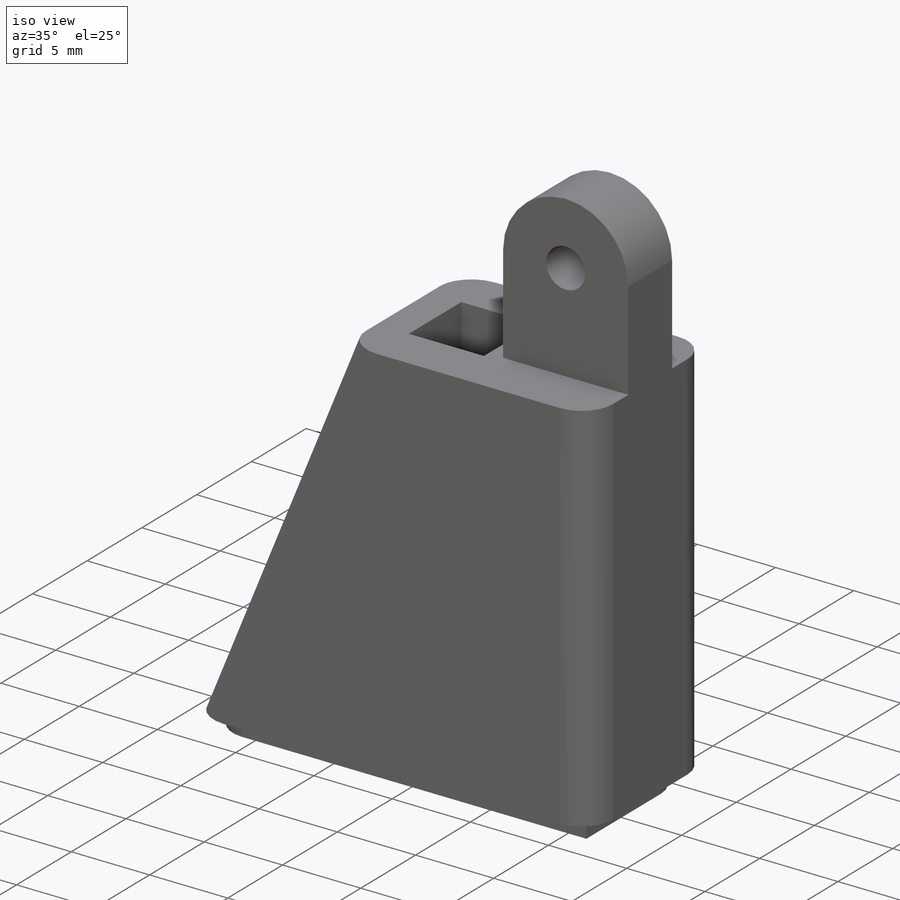
[diagram: iso view]
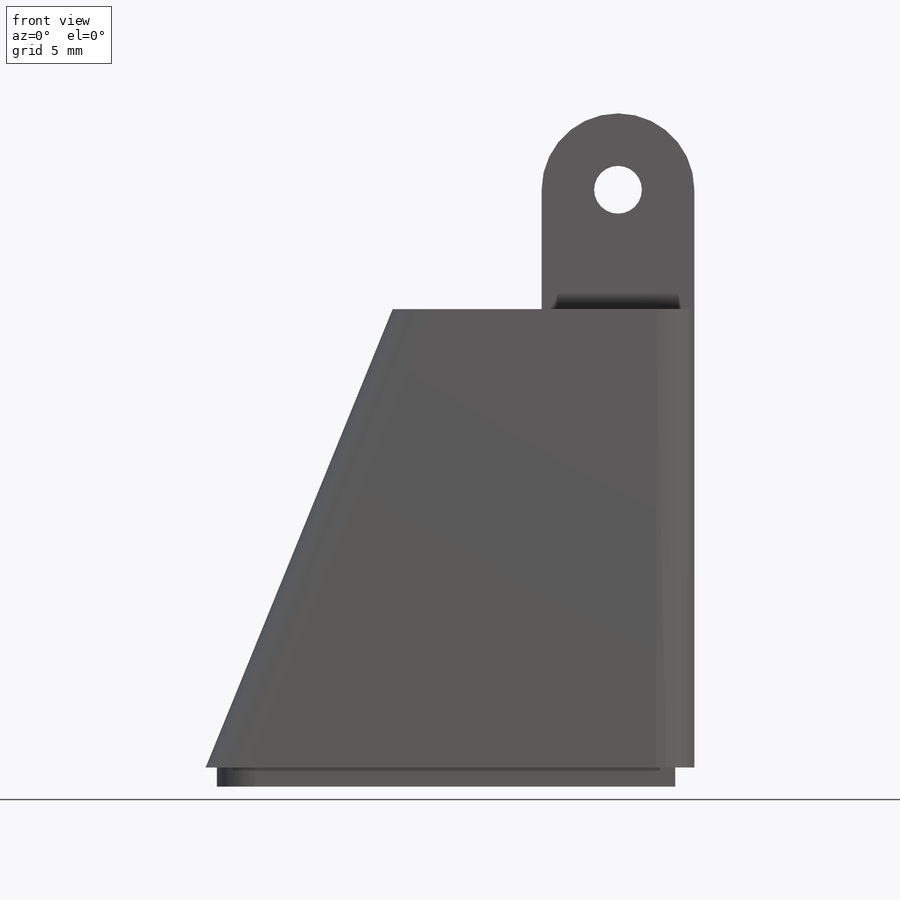
[diagram: front view]
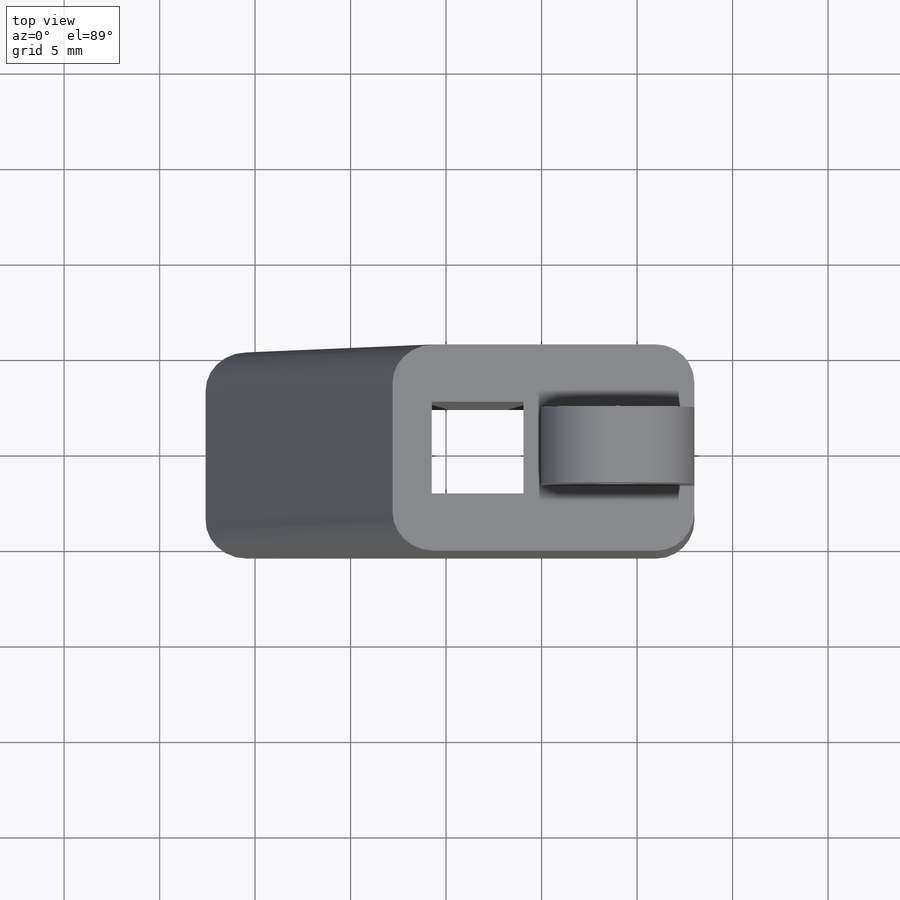
[diagram: top view]
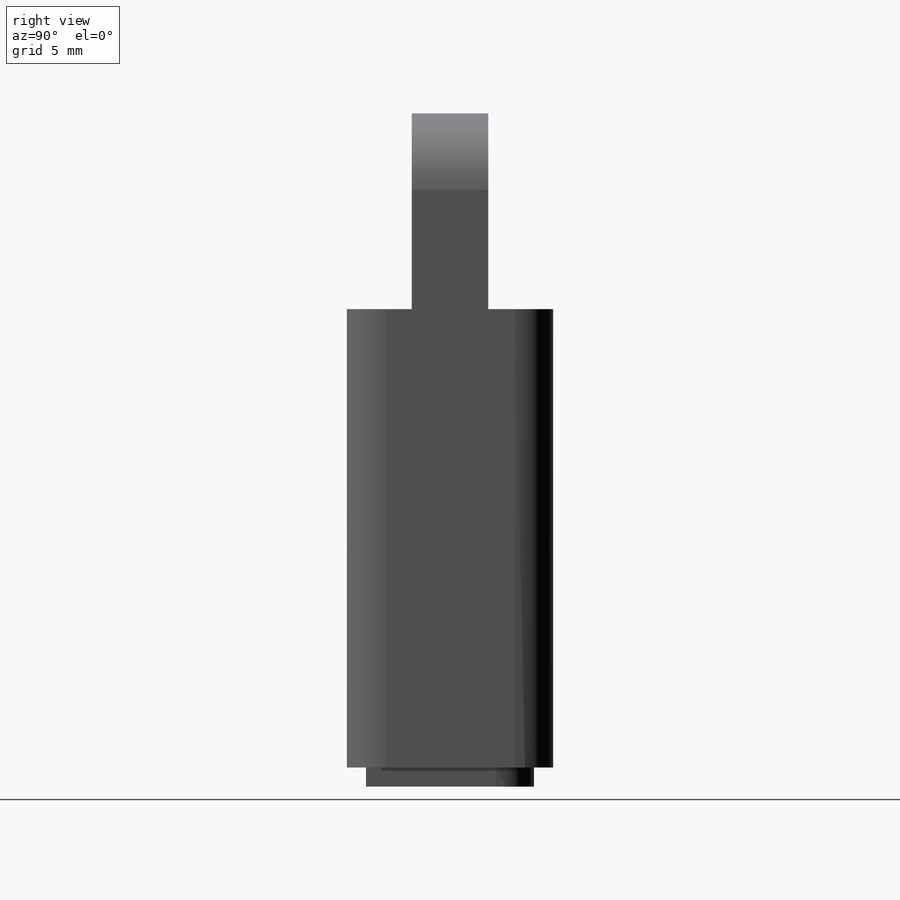
[diagram: right view]
SOLIDWORKS PART (.sldprt)
format: sldprt  version: not decoded by parser v0  size: 418,816 bytes
history: native  units: mm
features: sketch x7, cut_extrude x5, extrude x2, fillet x2, material x1, shell x1 (+11 scaffold rows collapsed)
feature tree (29):
  scaffold x11  (default folders/planes/origin — collapsed)
  material  "Material <not specified>"
  sketch  "Sketch1"  dims[D1=10.8mm D2=26.0mm]
  extrude  "Boss-Extrude1"  Depth=25mm
  sketch  "Sketch2"  dims[D1=8.0mm D2=4.0mm]
  extrude  "Boss-Extrude2"  Depth=10.25mm
  sketch  "Sketch3"  dims[D1=2.5mm D2=6.0mm]
  cut_extrude  "Cut-Extrude1"  Depth=10.25mm
  sketch  "Sketch4"  dims[D1=7.8mm]
  cut_extrude  "Cut-Extrude2"  [1 undecoded]
  shell  "Shell1"  Thickness=3mm
  sketch  "Sketch5"  dims[D1=4.8mm D2=0.95mm]
  cut_extrude  "Cut-Extrude3"  Depth=10.25mm
  sketch  "Sketch6"  dims[D1=1.0mm]
  sketch  "Sketch7"  dims[D1=1.0mm]
  cut_extrude  "Cut-Extrude4"  [1 undecoded]
  cut_extrude  "Cut-Extrude5"  Depth=10.25mm
  fillet  "Fillet1"  Radius=2mm
  fillet  "Fillet2"  Radius=2mm
decode coverage: 15 of 17 modeling features carry decoded parameters
note: 2 parameter values undecoded
note: suppression state not decoded; provenance and decode notes live in map.json
